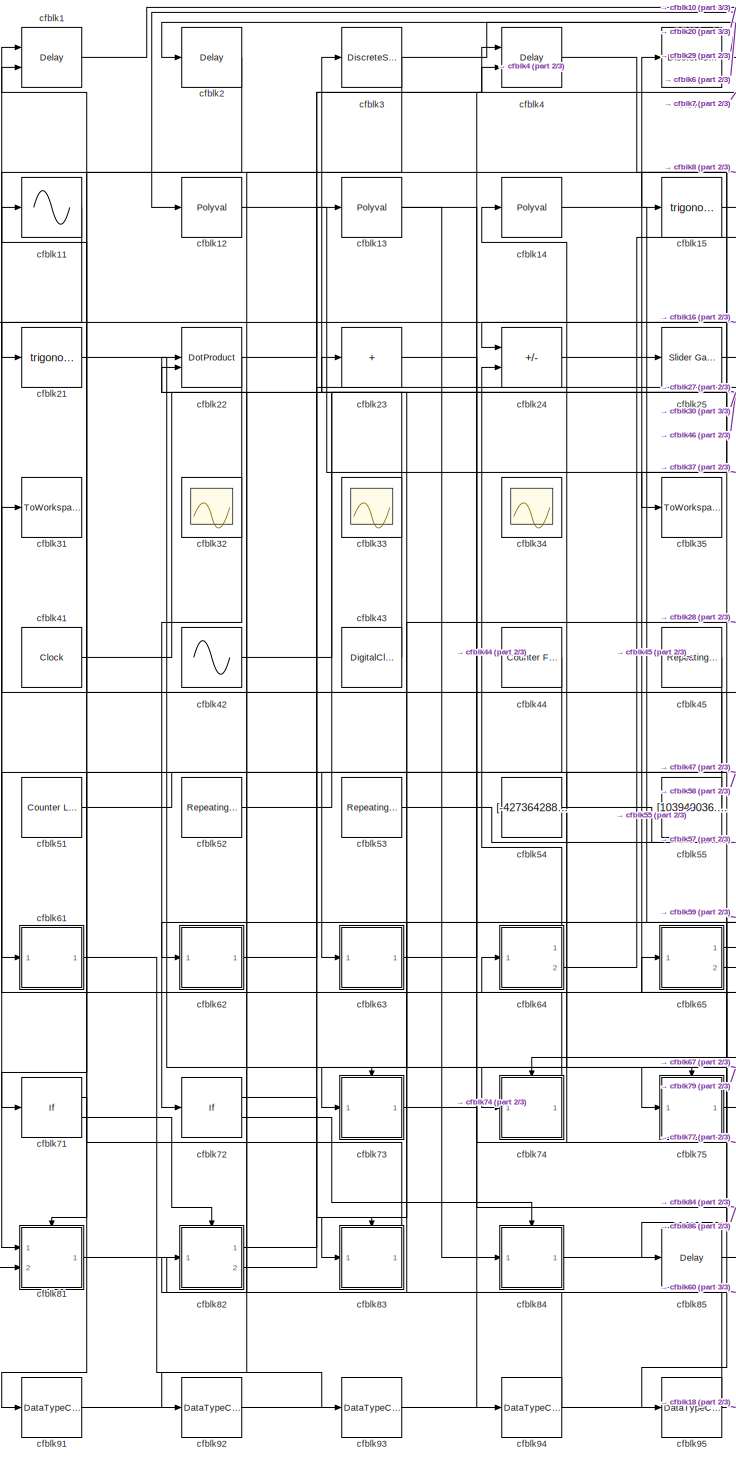
[diagram: root canvas - part 1/3, left side, full height]
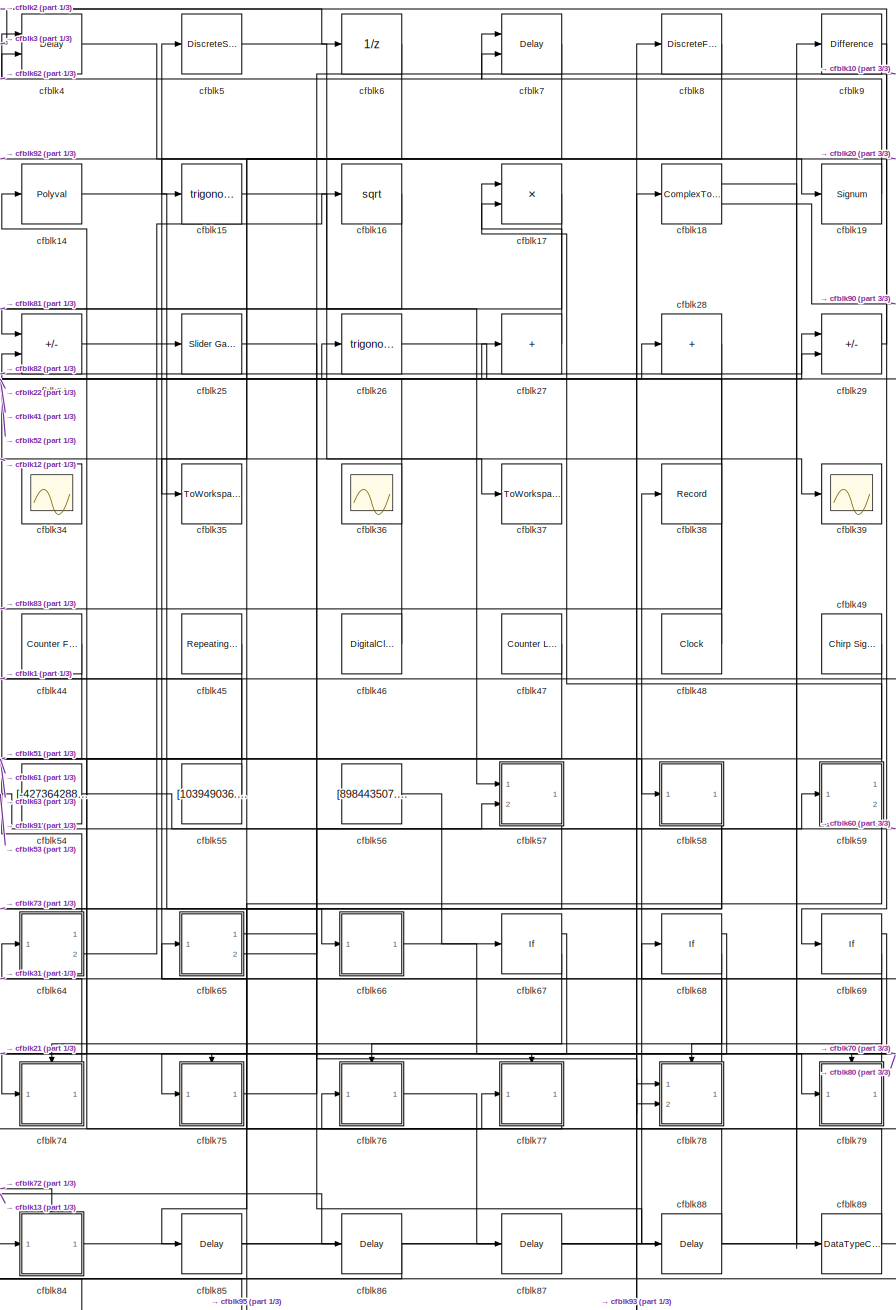
[diagram: root canvas - part 2/3, center side, full height]
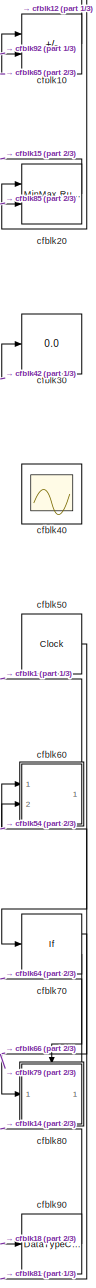
[diagram: root canvas - part 3/3, right side, full height]
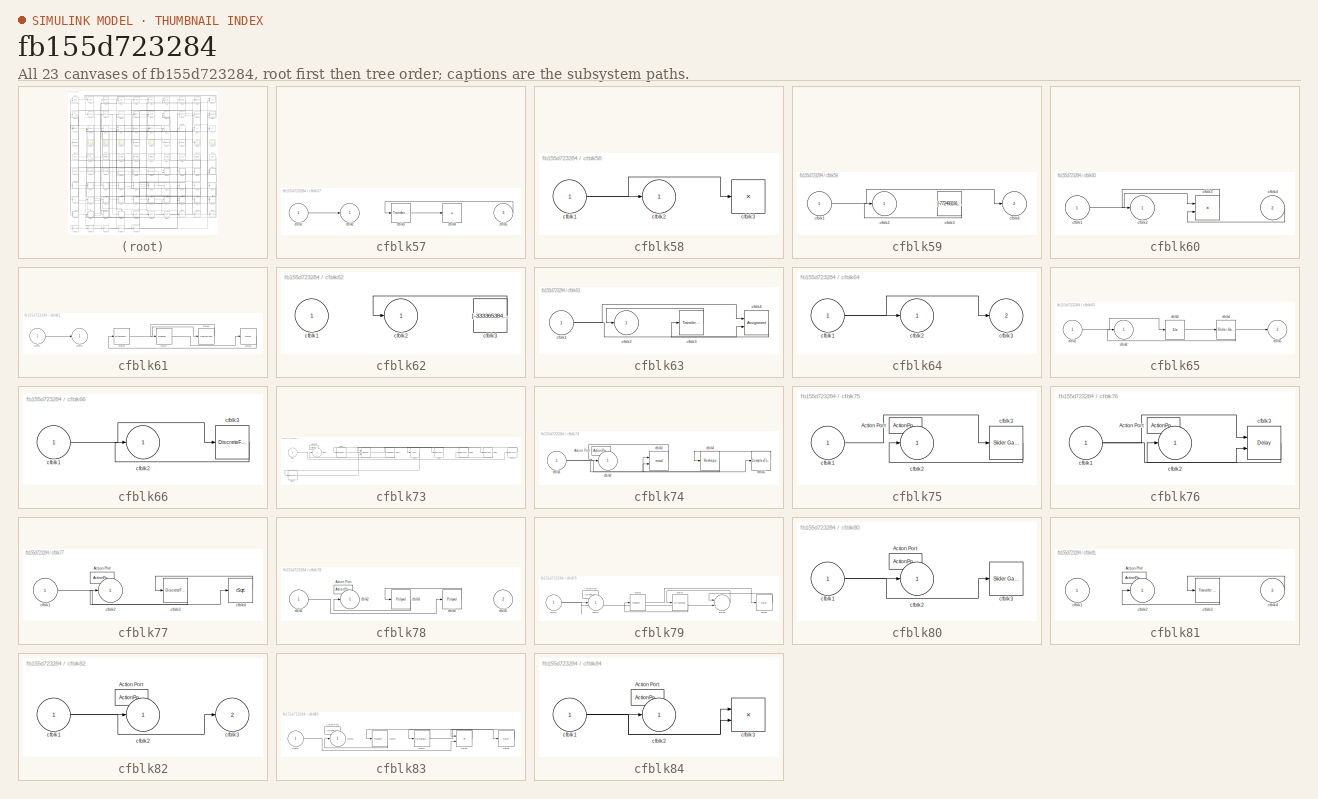
[diagram: thumbnail index - all 23 canvases of the model, root first then tree order]
MODEL slx_fb155d723284
KIND model
CONFIG AbsTol = auto
CONFIG EnableMultiTasking = off
CONFIG FixedStep = auto
CONFIG MaxStep = auto
CONFIG MinStep = auto
CONFIG RelTol = 1e-3
CONFIG SampleTimeConstraint = Unconstrained
CONFIG SolverName = VariableStepAuto
CONFIG StartTime = 0.0
CONFIG StopTime = 10.0
BLOCK [Delay] cfblk1
  DelayLengthSource = Input port
  InputPortMap = u0,p1
  Ports = [2, 1]
  SampleTime = 1
BLOCK [Sum] cfblk10
  IconShape = rectangular
  Inputs = +-
  Ports = [2, 1]
BLOCK [Sin] cfblk11
  Ports = [1, 1]
  SampleTime = 0
  TimeSource = Use external signal
BLOCK [Polyval] cfblk12
  Coefs = [ +2.081618890e-019, -1.441693666e-014, +4.719686976e-010, -8.536869453e-006, +1.621573104e-001, -8.087801117e+001 ]
BLOCK [Polyval] cfblk13
  Coefs = [ +2.081618890e-019, -1.441693666e-014, +4.719686976e-010, -8.536869453e-006, +1.621573104e-001, -8.087801117e+001 ]
BLOCK [Polyval] cfblk14
  Coefs = [ +2.081618890e-019, -1.441693666e-014, +4.719686976e-010, -8.536869453e-006, +1.621573104e-001, -8.087801117e+001 ]
BLOCK [Trigonometry] cfblk15
  Ports = [1, 1]
BLOCK [Sqrt] cfblk16
BLOCK [Product] cfblk17
  Ports = [2, 1]
BLOCK [ComplexToRealImag] cfblk18
  Ports = [1, 2]
BLOCK [Signum] cfblk19
BLOCK [Delay] cfblk2
  InputPortMap = u0
  Ports = [1, 1]
  SampleTime = 1
BLOCK [Reference] cfblk20  REF=simulink/Math
Operations/MinMax
Running
Resettable
  Ports = [2, 1]
  SourceBlock = simulink/Math\nOperations/MinMax\nRunning\nResettable
  SourceProductBaseCode = SL
  SourceType = MinMax Running Resettable
BLOCK [Trigonometry] cfblk21
  Ports = [1, 1]
BLOCK [DotProduct] cfblk22
  OutDataTypeStr = Inherit: Inherit via internal rule
BLOCK [Sum] cfblk23
  IconShape = rectangular
  Inputs = +
  Ports = [1, 1]
BLOCK [Sum] cfblk24
  IconShape = rectangular
  Inputs = +-
  Ports = [2, 1]
BLOCK [Reference] cfblk25  REF=simulink/Math
Operations/Slider
Gain
  Ports = [1, 1]
  SourceBlock = simulink/Math\nOperations/Slider\nGain
  SourceProductBaseCode = SL
  SourceType = Slider Gain
BLOCK [Trigonometry] cfblk26
  Ports = [1, 1]
BLOCK [Sum] cfblk27
  IconShape = rectangular
  Inputs = +
  Ports = [1, 1]
BLOCK [Sum] cfblk28
  IconShape = rectangular
  Inputs = +
  Ports = [1, 1]
BLOCK [Sum] cfblk29
  IconShape = rectangular
  Inputs = +-
  Ports = [2, 1]
BLOCK [DiscreteStateSpace] cfblk3
BLOCK [Display] cfblk30
  Decimation = 1
  Ports = [1]
BLOCK [ToWorkspace] cfblk31
  FixptAsFi = on
  MaxDataPoints = inf
  Ports = [1]
  SampleTime = -1
  SaveFormat = Timeseries
  VariableName = wjpwvwm
BLOCK [Scope] cfblk32
  Floating = on
  NumInputPorts = 1
  Ports = []
BLOCK [Scope] cfblk33
  Floating = on
  NumInputPorts = 1
  Ports = []
BLOCK [Scope] cfblk34
  Floating = on
  NumInputPorts = 1
  Ports = []
BLOCK [ToWorkspace] cfblk35
  FixptAsFi = on
  MaxDataPoints = inf
  Ports = [1]
  SampleTime = -1
  SaveFormat = Timeseries
  VariableName = seezbzf
BLOCK [Scope] cfblk36
  Floating = on
  NumInputPorts = 1
  Ports = []
BLOCK [ToWorkspace] cfblk37
  FixptAsFi = on
  MaxDataPoints = inf
  Ports = [1]
  SampleTime = -1
  SaveFormat = Timeseries
  VariableName = xiiisrs
BLOCK [Record] cfblk38
  FileSettingsInternal = {"entries":[{"content":{"excelSettings":{"content":{},"type":"Streamout.ExcelSettings"}},"type":"Streamout.FileSettingStorage","uuid":"df2d4dfc-2a52-453f-9162-7e4b7b1ef560"}],"packageUris":["http://schema.mathworks.com/mf0/streamout_blocks/R2020a"],"version":"1.0"}
  Ports = [1]
  SignalsInternal = {"entries":[{"content":{"signals":[{"content":{"blockPath":["sampleModel130/cfblk38"],"channel":[],"dimensions":[1],"domain":"sampleModel130/cfblk38","lineColor":"#ff6929","plots":[1],"port":1,"sid":[""],"signalID":4547,"signalName":"cfblk84"},"type":"RecordBlkView.Signal","uuid":"77a7a94c-391c-43bd-ba92-53a2dba3dce4"}]},"type":"RecordBlkView.InputSignals","uuid":"1134eac6-1b87-41a8-a267-5a408cb23...<+97ch>
  VisualizationBindings = {"sparklinesplugin":{"info":[{"bindingParametersList":[],"subplotID":1}]}}
BLOCK [Scope] cfblk39
  Floating = off
  NumInputPorts = 1
  Ports = [1]
BLOCK [Delay] cfblk4
  InputPortMap = u0,e6
  Ports = [2, 1]
  SampleTime = 1
  ShowEnablePort = on
BLOCK [Scope] cfblk40
  Floating = on
  NumInputPorts = 1
  Ports = []
BLOCK [Clock] cfblk41
BLOCK [Sin] cfblk42
  Amplitude = [-790719312.220439]
  Bias = [400958041.648387]
  Ports = [0, 1]
  SampleTime = 0
BLOCK [DigitalClock] cfblk43
BLOCK [Reference] cfblk44  REF=simulink/Sources/Counter
Free-Running
  Ports = [0, 1]
  SourceBlock = simulink/Sources/Counter\nFree-Running
  SourceProductBaseCode = SL
  SourceType = Counter Free-Running
BLOCK [Reference] cfblk45  REF=simulink/Sources/Repeating
Sequence
  Ports = [0, 1]
  SourceBlock = simulink/Sources/Repeating\nSequence
  SourceProductBaseCode = SL
  SourceType = Repeating table
BLOCK [DigitalClock] cfblk46
BLOCK [Reference] cfblk47  REF=simulink/Sources/Counter
Limited
  Ports = [0, 1]
  SourceBlock = simulink/Sources/Counter\nLimited
  SourceProductBaseCode = SL
  SourceType = Counter Limited
BLOCK [Clock] cfblk48
BLOCK [Reference] cfblk49  REF=simulink/Sources/Chirp Signal
  Ports = [0, 1]
  SourceBlock = simulink/Sources/Chirp Signal
  SourceProductBaseCode = SL
  SourceType = chirp
BLOCK [DiscreteStateSpace] cfblk5
BLOCK [Clock] cfblk50
BLOCK [Reference] cfblk51  REF=simulink/Sources/Counter
Limited
  Ports = [0, 1]
  SourceBlock = simulink/Sources/Counter\nLimited
  SourceProductBaseCode = SL
  SourceType = Counter Limited
BLOCK [Reference] cfblk52  REF=simulink/Sources/Repeating
Sequence
Interpolated
  Ports = [0, 1]
  SourceBlock = simulink/Sources/Repeating\nSequence\nInterpolated
  SourceProductBaseCode = SL
  SourceType = Repeating Sequence Interpolated
BLOCK [Reference] cfblk53  REF=simulink/Sources/Repeating
Sequence
Interpolated
  Ports = [0, 1]
  SourceBlock = simulink/Sources/Repeating\nSequence\nInterpolated
  SourceProductBaseCode = SL
  SourceType = Repeating Sequence Interpolated
BLOCK [Constant] cfblk54
  SampleTime = 1
  Value = [-427364288.385871]
BLOCK [Constant] cfblk55
  SampleTime = 1
  Value = [103949036.709470]
BLOCK [Constant] cfblk56
  SampleTime = 1
  Value = [898443507.594282]
BLOCK [SubSystem] cfblk57
  Ports = [2, 1]
  RequestExecContextInheritance = off
BLOCK [Inport] cfblk57/cfblk1
BLOCK [Outport] cfblk57/cfblk2
BLOCK [Reference] cfblk57/cfblk3  REF=simulink/Discrete/Transfer Fcn
First Order
  Ports = [1, 1]
  SourceBlock = simulink/Discrete/Transfer Fcn\nFirst Order
  SourceProductBaseCode = SL
  SourceType = First Order Transfer Fcn
BLOCK [Product] cfblk57/cfblk4
  Inputs = *
  Ports = [1, 1]
BLOCK [Inport] cfblk57/cfblk5
  Port = 2
BLOCK [SubSystem] cfblk58
  Ports = [1, 1]
  RequestExecContextInheritance = off
BLOCK [Inport] cfblk58/cfblk1
BLOCK [Outport] cfblk58/cfblk2
BLOCK [Product] cfblk58/cfblk3
  Inputs = *
  Ports = [1, 1]
BLOCK [SubSystem] cfblk59
  Ports = [1, 2]
  RequestExecContextInheritance = off
BLOCK [Inport] cfblk59/cfblk1
BLOCK [Outport] cfblk59/cfblk2
BLOCK [Constant] cfblk59/cfblk3
  SampleTime = 1
  Value = [-772493191.754610]
BLOCK [Outport] cfblk59/cfblk4
  Port = 2
BLOCK [UnitDelay] cfblk6
  HasFrameUpgradeWarning = on
BLOCK [SubSystem] cfblk60
  Ports = [2, 1]
  RequestExecContextInheritance = off
BLOCK [Inport] cfblk60/cfblk1
BLOCK [Outport] cfblk60/cfblk2
BLOCK [Product] cfblk60/cfblk3
  Ports = [2, 1]
BLOCK [Inport] cfblk60/cfblk4
  Port = 2
BLOCK [SubSystem] cfblk61
  Ports = [1, 1]
  RequestExecContextInheritance = off
BLOCK [Inport] cfblk61/cfblk1
BLOCK [Outport] cfblk61/cfblk2
BLOCK [DiscreteStateSpace] cfblk61/cfblk3
BLOCK [Reference] cfblk61/cfblk4  REF=simulink/Discrete/Transfer Fcn
Lead or Lag
  Ports = [1, 1]
  SourceBlock = simulink/Discrete/Transfer Fcn\nLead or Lag
  SourceProductBaseCode = SL
  SourceType = Lead or Lag Compensator
BLOCK [UnaryMinus] cfblk61/cfblk5
BLOCK [Delay] cfblk61/cfblk6
  InputPortMap = u0
  Ports = [1, 1]
  SampleTime = 1
BLOCK [SubSystem] cfblk62
  Ports = [1, 1]
  RequestExecContextInheritance = off
BLOCK [Inport] cfblk62/cfblk1
BLOCK [Outport] cfblk62/cfblk2
BLOCK [Constant] cfblk62/cfblk3
  SampleTime = 1
  Value = [-333365384.204087]
BLOCK [SubSystem] cfblk63
  Ports = [1, 1]
  RequestExecContextInheritance = off
BLOCK [Inport] cfblk63/cfblk1
BLOCK [Outport] cfblk63/cfblk2
BLOCK [Reference] cfblk63/cfblk3  REF=simulink/Discrete/Transfer Fcn
First Order
  Ports = [1, 1]
  SourceBlock = simulink/Discrete/Transfer Fcn\nFirst Order
  SourceProductBaseCode = SL
  SourceType = First Order Transfer Fcn
BLOCK [Assignment] cfblk63/cfblk4
  DiagnosticForDimensions = Warning
  IndexOptions = Index vector (dialog)
  Indices = 1
  OutputSizes = 1
  Ports = [2, 1]
BLOCK [SubSystem] cfblk64
  Ports = [1, 2]
  RequestExecContextInheritance = off
BLOCK [Inport] cfblk64/cfblk1
BLOCK [Outport] cfblk64/cfblk2
BLOCK [Outport] cfblk64/cfblk3
  Port = 2
BLOCK [SubSystem] cfblk65
  Ports = [1, 2]
  RequestExecContextInheritance = off
BLOCK [Inport] cfblk65/cfblk1
BLOCK [Outport] cfblk65/cfblk2
BLOCK [UnitDelay] cfblk65/cfblk3
  HasFrameUpgradeWarning = on
BLOCK [Reference] cfblk65/cfblk4  REF=simulink/Math
Operations/Slider
Gain
  Ports = [1, 1]
  SourceBlock = simulink/Math\nOperations/Slider\nGain
  SourceProductBaseCode = SL
  SourceType = Slider Gain
BLOCK [Outport] cfblk65/cfblk5
  Port = 2
BLOCK [SubSystem] cfblk66
  Ports = [1, 1]
  RequestExecContextInheritance = off
BLOCK [Inport] cfblk66/cfblk1
BLOCK [Outport] cfblk66/cfblk2
BLOCK [DiscreteFir] cfblk66/cfblk3
  InputPortMap = u0
  OutputPortMap = o0
  Ports = [1, 1]
  SampleTime = 1
BLOCK [If] cfblk67
  IfExpression = u1 >= 0
  Ports = [1, 2]
  SampleTime = 1
BLOCK [If] cfblk68
  IfExpression = u1 >= 0
  Ports = [1, 2]
  SampleTime = 1
BLOCK [If] cfblk69
  IfExpression = u1 >= 0
  Ports = [1, 2]
  SampleTime = 1
BLOCK [Delay] cfblk7
  InputPortMap = u0,e6
  Ports = [2, 1]
  SampleTime = 1
  ShowEnablePort = on
BLOCK [If] cfblk70
  IfExpression = u1 >= 0
  Ports = [1, 2]
  SampleTime = 1
BLOCK [If] cfblk71
  IfExpression = u1 >= 0
  Ports = [1, 2]
  SampleTime = 1
BLOCK [If] cfblk72
  IfExpression = u1 >= 0
  Ports = [1, 2]
  SampleTime = 1
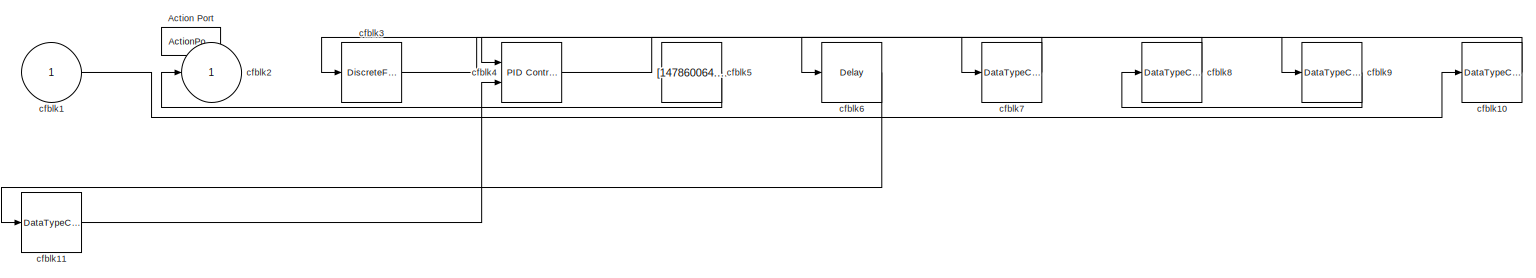
[diagram: cfblk73 - part 1/1, most of the canvas]
BLOCK [SubSystem] cfblk73
  Ports = [1, 1, 0, 0, 0, 0, 0, 1]
  RequestExecContextInheritance = off
  TreatAsAtomicUnit = on
BLOCK [ActionPort] cfblk73/Action Port
  ActionPortLabel = if(u1 >= 0)
BLOCK [Inport] cfblk73/cfblk1
BLOCK [DataTypeConversion] cfblk73/cfblk10
  RndMeth = Floor
  SaturateOnIntegerOverflow = off
BLOCK [DataTypeConversion] cfblk73/cfblk11
  RndMeth = Floor
  SaturateOnIntegerOverflow = off
BLOCK [Outport] cfblk73/cfblk2
BLOCK [DiscreteFilter] cfblk73/cfblk3
  InputPortMap = u0
  Ports = [1, 1]
BLOCK [Reference] cfblk73/cfblk4  REF=slpidlib/PID Controller (2DOF)
  Ports = [2, 1]
  SourceBlock = slpidlib/PID Controller (2DOF)
  SourceProductBaseCode = SL
  SourceType = PID 2dof
BLOCK [Constant] cfblk73/cfblk5
  SampleTime = 1
  Value = [147860064.270793]
BLOCK [Delay] cfblk73/cfblk6
  InputPortMap = u0
  Ports = [1, 1]
BLOCK [DataTypeConversion] cfblk73/cfblk7
  RndMeth = Floor
  SaturateOnIntegerOverflow = off
BLOCK [DataTypeConversion] cfblk73/cfblk8
  RndMeth = Floor
  SaturateOnIntegerOverflow = off
BLOCK [DataTypeConversion] cfblk73/cfblk9
  RndMeth = Floor
  SaturateOnIntegerOverflow = off
BLOCK [SubSystem] cfblk74
  Ports = [1, 1, 0, 0, 0, 0, 0, 1]
  RequestExecContextInheritance = off
  TreatAsAtomicUnit = on
BLOCK [ActionPort] cfblk74/Action Port
  ActionPortLabel = else
BLOCK [Inport] cfblk74/cfblk1
BLOCK [Outport] cfblk74/cfblk2
BLOCK [Math] cfblk74/cfblk3
  Operator = mod
  Ports = [2, 1]
BLOCK [Reshape] cfblk74/cfblk4
  Ports = [1, 1]
BLOCK [ComplexToMagnitudeAngle] cfblk74/cfblk5
  Ports = [1, 2]
BLOCK [SubSystem] cfblk75
  Ports = [1, 1, 0, 0, 0, 0, 0, 1]
  RequestExecContextInheritance = off
  TreatAsAtomicUnit = on
BLOCK [ActionPort] cfblk75/Action Port
  ActionPortLabel = if(u1 >= 0)
BLOCK [Inport] cfblk75/cfblk1
BLOCK [Outport] cfblk75/cfblk2
BLOCK [Reference] cfblk75/cfblk3  REF=simulink/Math
Operations/Slider
Gain
  Ports = [1, 1]
  SourceBlock = simulink/Math\nOperations/Slider\nGain
  SourceProductBaseCode = SL
  SourceType = Slider Gain
BLOCK [SubSystem] cfblk76
  Ports = [1, 1, 0, 0, 0, 0, 0, 1]
  RequestExecContextInheritance = off
  TreatAsAtomicUnit = on
BLOCK [ActionPort] cfblk76/Action Port
  ActionPortLabel = else
BLOCK [Inport] cfblk76/cfblk1
BLOCK [Outport] cfblk76/cfblk2
BLOCK [Delay] cfblk76/cfblk3
  InputPortMap = u0,e6
  Ports = [2, 1]
  ShowEnablePort = on
BLOCK [SubSystem] cfblk77
  Ports = [1, 1, 0, 0, 0, 0, 0, 1]
  RequestExecContextInheritance = off
  TreatAsAtomicUnit = on
BLOCK [ActionPort] cfblk77/Action Port
  ActionPortLabel = if(u1 >= 0)
BLOCK [Inport] cfblk77/cfblk1
BLOCK [Outport] cfblk77/cfblk2
BLOCK [DiscreteFir] cfblk77/cfblk3
  InputPortMap = u0
  OutputPortMap = o0
  Ports = [1, 1]
BLOCK [Sqrt] cfblk77/cfblk4
  AlgorithmType = Newton-Raphson
  Operator = rSqrt
BLOCK [SubSystem] cfblk78
  Ports = [2, 1, 0, 0, 0, 0, 0, 1]
  RequestExecContextInheritance = off
  TreatAsAtomicUnit = on
BLOCK [ActionPort] cfblk78/Action Port
  ActionPortLabel = else
BLOCK [Inport] cfblk78/cfblk1
BLOCK [Outport] cfblk78/cfblk2
BLOCK [Polyval] cfblk78/cfblk3
  Coefs = [ +2.081618890e-019, -1.441693666e-014, +4.719686976e-010, -8.536869453e-006, +1.621573104e-001, -8.087801117e+001 ]
BLOCK [Polyval] cfblk78/cfblk4
  Coefs = [ +2.081618890e-019, -1.441693666e-014, +4.719686976e-010, -8.536869453e-006, +1.621573104e-001, -8.087801117e+001 ]
BLOCK [Inport] cfblk78/cfblk5
  Port = 2
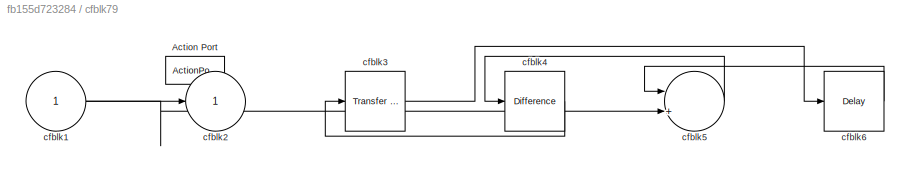
BLOCK [SubSystem] cfblk79
  Ports = [1, 1, 0, 0, 0, 0, 0, 1]
  RequestExecContextInheritance = off
  TreatAsAtomicUnit = on
BLOCK [ActionPort] cfblk79/Action Port
  ActionPortLabel = if(u1 >= 0)
BLOCK [Inport] cfblk79/cfblk1
BLOCK [Outport] cfblk79/cfblk2
BLOCK [Reference] cfblk79/cfblk3  REF=simulink/Discrete/Transfer Fcn
Lead or Lag
  Ports = [1, 1]
  SourceBlock = simulink/Discrete/Transfer Fcn\nLead or Lag
  SourceProductBaseCode = SL
  SourceType = Lead or Lag Compensator
BLOCK [Reference] cfblk79/cfblk4  REF=simulink/Discrete/Difference
  Ports = [1, 1]
  SourceBlock = simulink/Discrete/Difference
  SourceProductBaseCode = SL
  SourceType = Difference
BLOCK [Sum] cfblk79/cfblk5
  Inputs = |++
  Ports = [2, 1]
BLOCK [Delay] cfblk79/cfblk6
  InputPortMap = u0
  Ports = [1, 1]
BLOCK [DiscreteFilter] cfblk8
  InputPortMap = u0
  Ports = [1, 1]
  SampleTime = 1
BLOCK [SubSystem] cfblk80
  Ports = [1, 1, 0, 0, 0, 0, 0, 1]
  RequestExecContextInheritance = off
  TreatAsAtomicUnit = on
BLOCK [ActionPort] cfblk80/Action Port
  ActionPortLabel = else
BLOCK [Inport] cfblk80/cfblk1
BLOCK [Outport] cfblk80/cfblk2
BLOCK [Reference] cfblk80/cfblk3  REF=simulink/Math
Operations/Slider
Gain
  Ports = [1, 1]
  SourceBlock = simulink/Math\nOperations/Slider\nGain
  SourceProductBaseCode = SL
  SourceType = Slider Gain
BLOCK [SubSystem] cfblk81
  Ports = [2, 1, 0, 0, 0, 0, 0, 1]
  RequestExecContextInheritance = off
  TreatAsAtomicUnit = on
BLOCK [ActionPort] cfblk81/Action Port
  ActionPortLabel = if(u1 >= 0)
BLOCK [Inport] cfblk81/cfblk1
BLOCK [Outport] cfblk81/cfblk2
BLOCK [Reference] cfblk81/cfblk3  REF=simulink/Discrete/Transfer Fcn
Real Zero
  Ports = [1, 1]
  SourceBlock = simulink/Discrete/Transfer Fcn\nReal Zero
  SourceProductBaseCode = SL
  SourceType = Transfer Fcn Real Zero
BLOCK [Inport] cfblk81/cfblk4
  Port = 2
BLOCK [SubSystem] cfblk82
  Ports = [1, 2, 0, 0, 0, 0, 0, 1]
  RequestExecContextInheritance = off
  TreatAsAtomicUnit = on
BLOCK [ActionPort] cfblk82/Action Port
  ActionPortLabel = else
BLOCK [Inport] cfblk82/cfblk1
BLOCK [Outport] cfblk82/cfblk2
BLOCK [Outport] cfblk82/cfblk3
  Port = 2
BLOCK [SubSystem] cfblk83
  Ports = [1, 1, 0, 0, 0, 0, 0, 1]
  RequestExecContextInheritance = off
  TreatAsAtomicUnit = on
BLOCK [ActionPort] cfblk83/Action Port
  ActionPortLabel = if(u1 >= 0)
BLOCK [Inport] cfblk83/cfblk1
BLOCK [Outport] cfblk83/cfblk2
BLOCK [Reference] cfblk83/cfblk3  REF=simulink/Discrete/Transfer Fcn
Real Zero
  Ports = [1, 1]
  SourceBlock = simulink/Discrete/Transfer Fcn\nReal Zero
  SourceProductBaseCode = SL
  SourceType = Transfer Fcn Real Zero
BLOCK [PermuteDimensions] cfblk83/cfblk4
BLOCK [Product] cfblk83/cfblk5
  Ports = [2, 1]
BLOCK [Delay] cfblk83/cfblk6
  InputPortMap = u0
  Ports = [1, 1]
BLOCK [SubSystem] cfblk84
  Ports = [1, 1, 0, 0, 0, 0, 0, 1]
  RequestExecContextInheritance = off
  TreatAsAtomicUnit = on
BLOCK [ActionPort] cfblk84/Action Port
  ActionPortLabel = else
BLOCK [Inport] cfblk84/cfblk1
BLOCK [Outport] cfblk84/cfblk2
BLOCK [Product] cfblk84/cfblk3
  Inputs = **
  Ports = [2, 1]
BLOCK [Delay] cfblk85
  InputPortMap = u0
  Ports = [1, 1]
  SampleTime = 1
BLOCK [Delay] cfblk86
  InputPortMap = u0
  Ports = [1, 1]
  SampleTime = 1
BLOCK [Delay] cfblk87
  InputPortMap = u0
  Ports = [1, 1]
  SampleTime = 1
BLOCK [Delay] cfblk88
  InputPortMap = u0
  Ports = [1, 1]
  SampleTime = 1
BLOCK [DataTypeConversion] cfblk89
  RndMeth = Floor
  SaturateOnIntegerOverflow = off
BLOCK [Reference] cfblk9  REF=simulink/Discrete/Difference
  Ports = [1, 1]
  SourceBlock = simulink/Discrete/Difference
  SourceProductBaseCode = SL
  SourceType = Difference
BLOCK [DataTypeConversion] cfblk90
  RndMeth = Floor
  SaturateOnIntegerOverflow = off
BLOCK [DataTypeConversion] cfblk91
  RndMeth = Floor
  SaturateOnIntegerOverflow = off
BLOCK [DataTypeConversion] cfblk92
  RndMeth = Floor
  SaturateOnIntegerOverflow = off
BLOCK [DataTypeConversion] cfblk93
  RndMeth = Floor
  SaturateOnIntegerOverflow = off
BLOCK [DataTypeConversion] cfblk94
  RndMeth = Floor
  SaturateOnIntegerOverflow = off
BLOCK [DataTypeConversion] cfblk95
  RndMeth = Floor
  SaturateOnIntegerOverflow = off
LINE cfblk10:1 -> cfblk12:1
LINE cfblk11:1 -> cfblk81:1
LINE cfblk12:1 -> cfblk37:1
NET cfblk13:1 -> cfblk84:1, cfblk86:1
LINE cfblk14:1 -> cfblk66:1
LINE cfblk15:1 -> cfblk57:1
LINE cfblk16:1 -> cfblk81:2
LINE cfblk17:1 -> cfblk24:1
LINE cfblk18:1 -> cfblk89:1
LINE cfblk18:2 -> cfblk90:1
LINE cfblk19:1 -> cfblk7:1
LINE cfblk1:1 -> cfblk20:1
LINE cfblk20:1 -> cfblk15:1
LINE cfblk21:1 -> cfblk79:1
NET cfblk22:1 -> cfblk4:2, cfblk72:1
LINE cfblk23:1 -> cfblk94:1
LINE cfblk24:1 -> cfblk25:1
LINE cfblk25:1 -> cfblk88:1
LINE cfblk26:1 -> cfblk28:1
LINE cfblk27:1 -> cfblk17:1
LINE cfblk28:1 -> cfblk83:1
LINE cfblk29:1 -> cfblk2:1
LINE cfblk2:1 -> cfblk21:1
NET cfblk3:1 -> cfblk6:1, cfblk71:1
LINE cfblk41:1 -> cfblk27:1
LINE cfblk42:1 -> cfblk30:1
LINE cfblk43:1 -> cfblk3:1
LINE cfblk44:1 -> cfblk91:1
LINE cfblk45:1 -> cfblk63:1
LINE cfblk46:1 -> cfblk22:1
LINE cfblk47:1 -> cfblk61:1
LINE cfblk48:1 -> cfblk26:1
LINE cfblk49:1 -> cfblk74:1
LINE cfblk4:1 -> cfblk19:1
LINE cfblk50:1 -> cfblk70:1
LINE cfblk51:1 -> cfblk58:1
LINE cfblk52:1 -> cfblk29:1
LINE cfblk53:1 -> cfblk57:2
LINE cfblk54:1 -> cfblk60:2
LINE cfblk55:1 -> cfblk1:1
LINE cfblk56:1 -> cfblk67:1
LINE cfblk57/cfblk1:1 -> cfblk57/cfblk2:1
LINE cfblk57/cfblk3:1 -> cfblk57/cfblk4:1
LINE cfblk57/cfblk5:1 -> cfblk57/cfblk3:1
LINE cfblk57:1 -> cfblk62:1
NET cfblk58/cfblk1:1 -> cfblk58/cfblk2:1, cfblk58/cfblk3:1
NET cfblk58:1 -> cfblk73:1, cfblk75:1
LINE cfblk59/cfblk1:1 -> cfblk59/cfblk4:1
LINE cfblk59/cfblk3:1 -> cfblk59/cfblk2:1
LINE cfblk59:1 -> cfblk17:2
LINE cfblk59:2 -> cfblk95:1
LINE cfblk5:1 -> cfblk39:1
LINE cfblk60/cfblk1:1 -> cfblk60/cfblk3:1
LINE cfblk60/cfblk3:1 -> cfblk60/cfblk2:1
LINE cfblk60/cfblk4:1 -> cfblk60/cfblk3:2
LINE cfblk60:1 -> cfblk1:2
LINE cfblk61/cfblk1:1 -> cfblk61/cfblk2:1
LINE cfblk61/cfblk3:1 -> cfblk61/cfblk5:1
LINE cfblk61/cfblk4:1 -> cfblk61/cfblk6:1
LINE cfblk61/cfblk5:1 -> cfblk61/cfblk4:1
LINE cfblk61/cfblk6:1 -> cfblk61/cfblk3:1
LINE cfblk61:1 -> cfblk93:1
LINE cfblk62/cfblk3:1 -> cfblk62/cfblk2:1
LINE cfblk62:1 -> cfblk4:1
NET cfblk63/cfblk1:1 -> cfblk63/cfblk4:1, cfblk63/cfblk4:2
LINE cfblk63/cfblk3:1 -> cfblk63/cfblk2:1
LINE cfblk63/cfblk4:1 -> cfblk63/cfblk3:1
LINE cfblk63:1 -> cfblk7:2
NET cfblk64/cfblk1:1 -> cfblk64/cfblk2:1, cfblk64/cfblk3:1
LINE cfblk64:1 -> cfblk24:2
LINE cfblk64:2 -> cfblk16:1
LINE cfblk65/cfblk1:1 -> cfblk65/cfblk3:1
LINE cfblk65/cfblk3:1 -> cfblk65/cfblk4:1
NET cfblk65/cfblk4:1 -> cfblk65/cfblk2:1, cfblk65/cfblk5:1
LINE cfblk65:1 -> cfblk78:2
LINE cfblk65:2 -> cfblk10:1
LINE cfblk66/cfblk1:1 -> cfblk66/cfblk3:1
LINE cfblk66/cfblk3:1 -> cfblk66/cfblk2:1
LINE cfblk66:1 -> cfblk80:1
LINE cfblk67:1 -> cfblk73:ifaction
LINE cfblk67:2 -> cfblk74:ifaction
LINE cfblk68:1 -> cfblk75:ifaction
LINE cfblk68:2 -> cfblk76:ifaction
LINE cfblk69:1 -> cfblk77:ifaction
LINE cfblk69:2 -> cfblk78:ifaction
LINE cfblk6:1 -> cfblk35:1
LINE cfblk70:1 -> cfblk79:ifaction
LINE cfblk70:2 -> cfblk80:ifaction
LINE cfblk71:1 -> cfblk81:ifaction
LINE cfblk71:2 -> cfblk82:ifaction
LINE cfblk72:1 -> cfblk83:ifaction
LINE cfblk72:2 -> cfblk84:ifaction
LINE cfblk73/cfblk10:1 -> cfblk73/cfblk4:1
LINE cfblk73/cfblk11:1 -> cfblk73/cfblk4:2
LINE cfblk73/cfblk1:1 -> cfblk73/cfblk10:1
LINE cfblk73/cfblk3:1 -> cfblk73/cfblk7:1
LINE cfblk73/cfblk4:1 -> cfblk73/cfblk9:1
LINE cfblk73/cfblk5:1 -> cfblk73/cfblk2:1
LINE cfblk73/cfblk6:1 -> cfblk73/cfblk11:1
LINE cfblk73/cfblk7:1 -> cfblk73/cfblk6:1
LINE cfblk73/cfblk8:1 -> cfblk73/cfblk3:1
LINE cfblk73/cfblk9:1 -> cfblk73/cfblk8:1
LINE cfblk73:1 -> cfblk77:1
NET cfblk74/cfblk1:1 -> cfblk74/cfblk3:1, cfblk74/cfblk5:1
LINE cfblk74/cfblk3:1 -> cfblk74/cfblk2:1
LINE cfblk74/cfblk4:1 -> cfblk74/cfblk3:2
LINE cfblk74/cfblk5:1 -> cfblk74/cfblk4:1
LINE cfblk74:1 -> cfblk31:1
LINE cfblk75/cfblk1:1 -> cfblk75/cfblk3:1
LINE cfblk75/cfblk3:1 -> cfblk75/cfblk2:1
LINE cfblk75:1 -> cfblk59:1
NET cfblk76/cfblk1:1 -> cfblk76/cfblk3:1, cfblk76/cfblk3:2
LINE cfblk76/cfblk3:1 -> cfblk76/cfblk2:1
LINE cfblk76:1 -> cfblk87:1
LINE cfblk77/cfblk1:1 -> cfblk77/cfblk4:1
LINE cfblk77/cfblk3:1 -> cfblk77/cfblk2:1
LINE cfblk77/cfblk4:1 -> cfblk77/cfblk3:1
LINE cfblk77:1 -> cfblk76:1
LINE cfblk78/cfblk1:1 -> cfblk78/cfblk4:1
LINE cfblk78/cfblk3:1 -> cfblk78/cfblk2:1
LINE cfblk78/cfblk4:1 -> cfblk78/cfblk3:1
LINE cfblk78:1 -> cfblk68:1
NET cfblk79/cfblk1:1 -> cfblk79/cfblk2:1, cfblk79/cfblk5:2
LINE cfblk79/cfblk3:1 -> cfblk79/cfblk6:1
LINE cfblk79/cfblk4:1 -> cfblk79/cfblk3:1
LINE cfblk79/cfblk5:1 -> cfblk79/cfblk4:1
LINE cfblk79/cfblk6:1 -> cfblk79/cfblk5:1
LINE cfblk79:1 -> cfblk5:1
LINE cfblk7:1 -> cfblk85:1
NET cfblk80/cfblk1:1 -> cfblk80/cfblk2:1, cfblk80/cfblk3:1
LINE cfblk80:1 -> cfblk64:1
LINE cfblk81/cfblk3:1 -> cfblk81/cfblk2:1
LINE cfblk81/cfblk4:1 -> cfblk81/cfblk3:1
LINE cfblk81:1 -> cfblk60:1
NET cfblk82/cfblk1:1 -> cfblk82/cfblk2:1, cfblk82/cfblk3:1
LINE cfblk82:1 -> cfblk13:1
LINE cfblk82:2 -> cfblk29:2
LINE cfblk83/cfblk1:1 -> cfblk83/cfblk5:2
LINE cfblk83/cfblk3:1 -> cfblk83/cfblk2:1
NET cfblk83/cfblk4:1 -> cfblk83/cfblk3:1, cfblk83/cfblk6:1
LINE cfblk83/cfblk5:1 -> cfblk83/cfblk4:1
LINE cfblk83/cfblk6:1 -> cfblk83/cfblk5:1
LINE cfblk83:1 -> cfblk11:1
NET cfblk84/cfblk1:1 -> cfblk84/cfblk2:1, cfblk84/cfblk3:1, cfblk84/cfblk3:2
LINE cfblk84:1 -> cfblk38:1
LINE cfblk85:1 -> cfblk20:2
LINE cfblk86:1 -> cfblk82:1
LINE cfblk87:1 -> cfblk9:1
LINE cfblk88:1 -> cfblk78:1
LINE cfblk89:1 -> cfblk65:1
LINE cfblk8:1 -> cfblk92:1
LINE cfblk90:1 -> cfblk14:1
LINE cfblk91:1 -> cfblk18:1
LINE cfblk92:1 -> cfblk10:2
LINE cfblk93:1 -> cfblk8:1
LINE cfblk94:1 -> cfblk22:2
LINE cfblk95:1 -> cfblk23:1
LINE cfblk9:1 -> cfblk69:1
note: NET lines group one-source signal fan-out (src -> all destinations, sorted); 1:1 wires keep LINE
